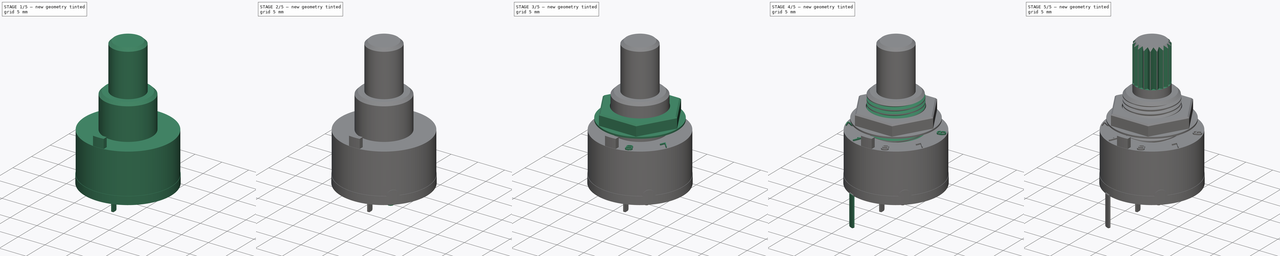
[diagram: build sequence overview — one tinted view per stage of 5, left to right]
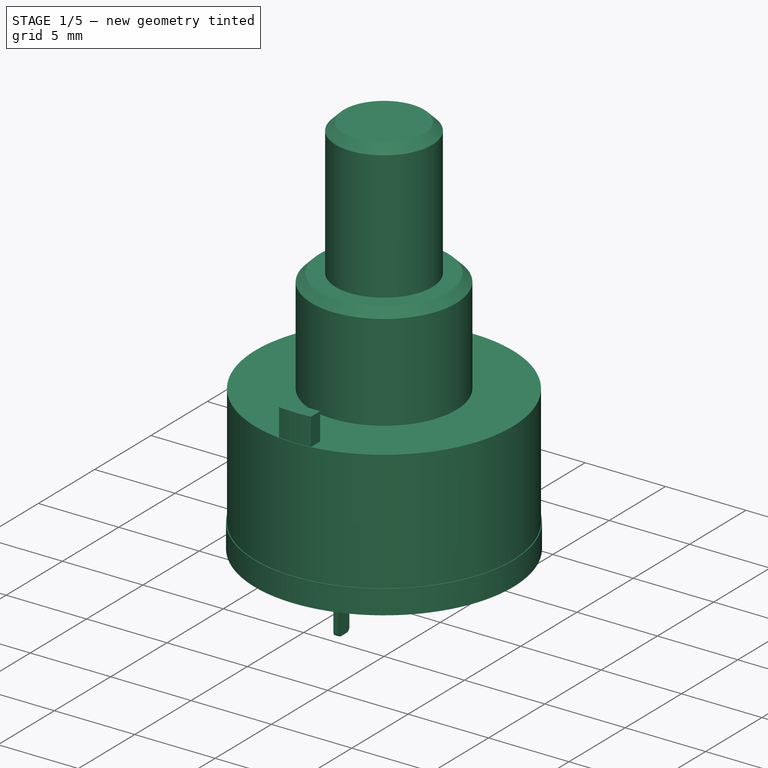
[diagram: stage 1 of 5 — iso view after this stage's code; geometry added in this stage tinted green]
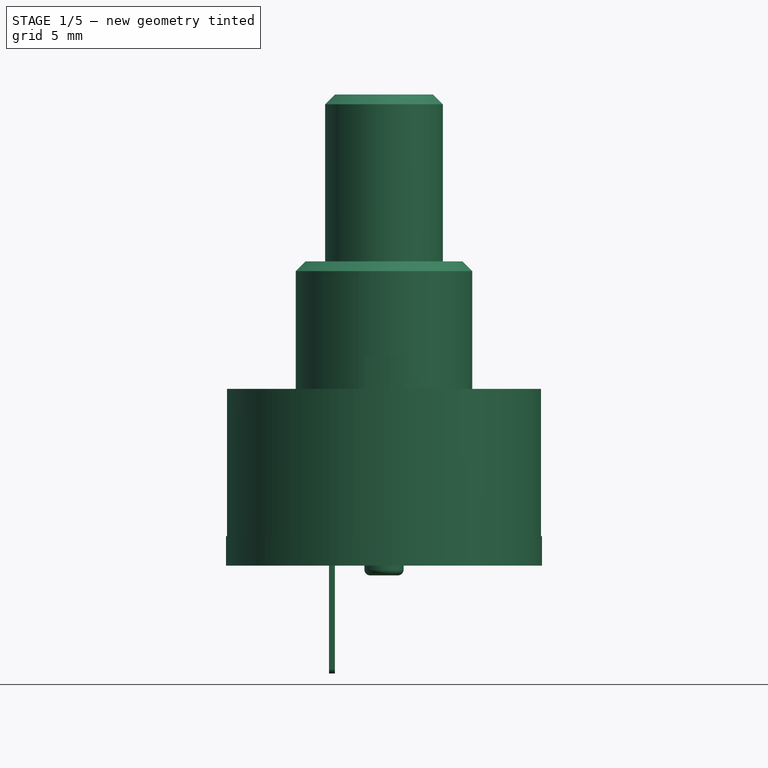
[diagram: stage 1 of 5 — front view after this stage's code; geometry added in this stage tinted green]
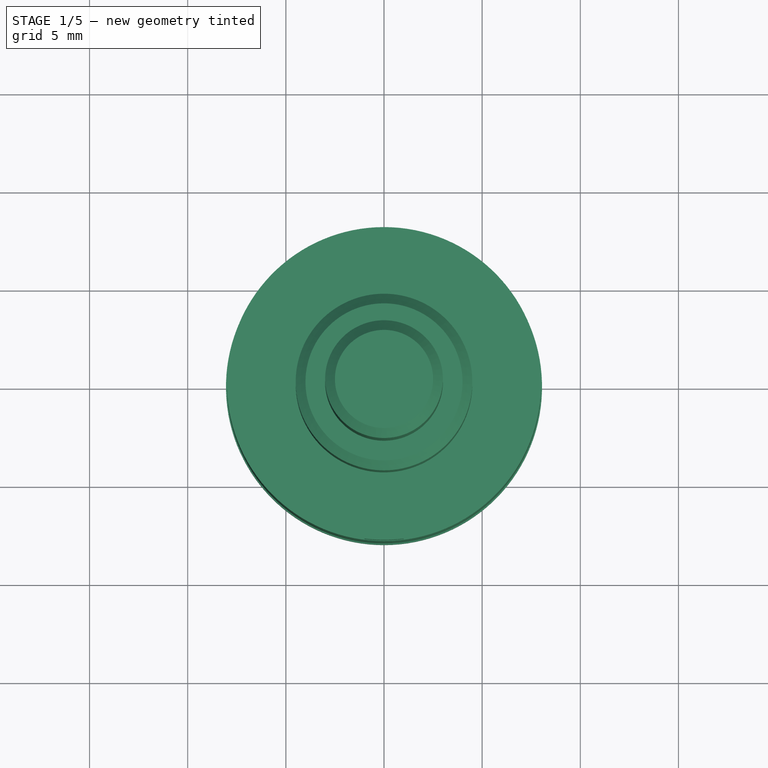
[diagram: stage 1 of 5 — top view after this stage's code; geometry added in this stage tinted green]
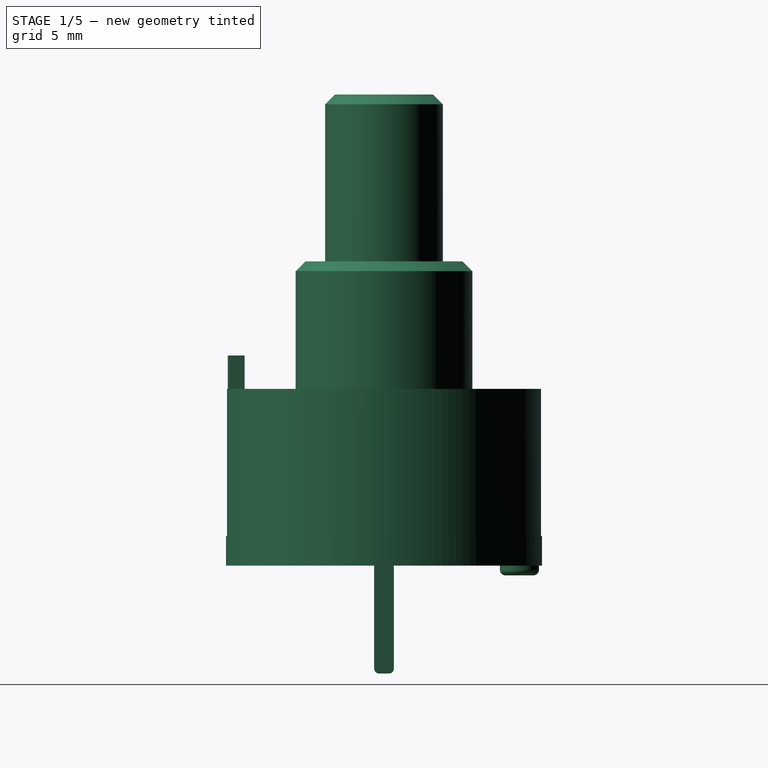
[diagram: stage 1 of 5 — right view after this stage's code; geometry added in this stage tinted green]
FCSTD DOCUMENT  (FreeCAD 0.19R16945 (Git))
Label: Daier RS16-2-4-15VP
License: All rights reserved
LicenseURL: http://en.wikipedia.org/wiki/All_rights_reserved
objects: PartDesign::Body×27, PartDesign::Pad×21, Sketcher::SketchObject×19, PartDesign::FeatureBase×11, Part::Part2DObjectPython×8, PartDesign::Fillet×6, PartDesign::Plane×4, PartDesign::PolarPattern×4, PartDesign::Pocket×3, PartDesign::Chamfer×2, PartDesign::AdditivePipe×1, Part::Helix×1, PartDesign::ShapeBinder×1, PartDesign::Mirrored×1, PartDesign::MultiTransform×1, PartDesign::SubtractivePipe×1
note: 137 computed .brp shape members not serialized (recipe doc carries the construction recipe); baked Part::Feature solids carry a one-line shape summary decoded from their .brp

FEATURE [Sketcher::SketchObject] Sketch
  AttachmentOffset = pos=(0,0,2.5) rot=(0,0,1;1.5708rad)
  MapMode = 5
  Placement = pos=(0,0,2.5) rot=(0,0,1;1.5708rad)
  Support = -> [XY_Plane]
  sketch-geometry (1):
    g0: Circle CenterX=0 CenterY=0 CenterZ=0 NormalX=0 NormalY=0 NormalZ=1 AngleXU=0 Radius=8
  constraints (2):
    c: Coincident(g0,g-1)
    c: Radius(g0) = 8
FEATURE [PartDesign::Pad] Pad  label="Body"
  Length = 7.5
  Length2 = 100
  Profile = -> Sketch
  Type = 0
FEATURE [Sketcher::SketchObject] Sketch001
  AttachmentOffset = pos=(0,0,0) rot=(0,0,1;1.5708rad)
  MapMode = 5
  Placement = pos=(0,0,10) rot=(0,0,1;1.5708rad)
  Support = -> [Pad]
  sketch-geometry (1):
    g0: Circle CenterX=0 CenterY=0 CenterZ=0 NormalX=0 NormalY=0 NormalZ=1 AngleXU=0 Radius=4.5
  constraints (2):
    c: Coincident(g0,g-1)
    c: Radius(g0) = 4.5
FEATURE [PartDesign::Pad] Pad001  label="Bushing"
  BaseFeature = -> Pad
  Length = 6.5
  Length2 = 100
  Profile = -> Sketch001
  Type = 0
FEATURE [Sketcher::SketchObject] Sketch002
  AttachmentOffset = pos=(0,0,0) rot=(0,0,1;1.5708rad)
  MapMode = 5
  Placement = pos=(0,0,16.5) rot=(0,0,1;1.5708rad)
  Support = -> [Pad001]
  sketch-geometry (1):
    g0: Circle CenterX=0 CenterY=0 CenterZ=0 NormalX=0 NormalY=0 NormalZ=1 AngleXU=0 Radius=3
  constraints (2):
    c: Coincident(g0,g-1)
    c: Radius(g0) = 3
FEATURE [PartDesign::Pad] Pad002  label="Shaft"
  BaseFeature = -> Pad001
  Length = 8.5
  Length2 = 100
  Profile = -> Sketch002
  Type = 0
FEATURE [Sketcher::SketchObject] Sketch003
  MapMode = 5
  Placement = pos=(0,0,10) rot=(0,0,1;0rad)
  sketch-geometry (7):
    g0: LineSegment [constr] StartX=-1 StartY=-7.9 StartZ=0 EndX=1 EndY=-7.9 EndZ=0
    g1: LineSegment StartX=1 StartY=-7.9 StartZ=0 EndX=1 EndY=-7.1 EndZ=0
    g2: LineSegment StartX=1 StartY=-7.1 StartZ=0 EndX=-1 EndY=-7.1 EndZ=0
    g3: LineSegment StartX=-1 StartY=-7.1 StartZ=0 EndX=-1 EndY=-7.9 EndZ=0
    g4: LineSegment [constr] StartX=-1 StartY=-7.9 StartZ=0 EndX=1 EndY=-7.1 EndZ=0
    g5: GeomPoint X=0 Y=-7.5 Z=0
    g6: ArcOfCircle CenterX=0 CenterY=0 CenterZ=0 NormalX=0 NormalY=0 NormalZ=1 AngleXU=0 Radius=7.96304 StartAngle=4.58648 EndAngle=4.8383
  constraints (17):
    c: Coincident(g1,g2)
    c: Coincident(g2,g3)
    c: Coincident(g3,g0)
    c: Horizontal(g0)
    c: Vertical(g1)
    c: Symmetric(g1,g2,g-2)
    c: DistanceX(g0,g0) = 2
    c: DistanceY(g3,g3) = 0.8
    c: Coincident(g4,g0)
    c: Coincident(g4,g1)
    c: PointOnObject(g5,g4)
    c: PointOnObject(g5,g-2)
    c: DistanceY(g5,g-1) = 7.5
    c: Coincident(g6,g-1)
    c: Coincident(g6,g3)
    c: Coincident(g6,g1)
    c: Coincident(g0,g1)
FEATURE [PartDesign::Pad] Pad003  label="Tab"
  BaseFeature = -> Pad002
  Length = 1.7
  Length2 = 100
  Profile = -> Sketch003
  Type = 0
FEATURE [Sketcher::SketchObject] Sketch008
  AttachmentOffset = pos=(0,0,1) rot=(0,0,1;0rad)
  MapMode = 5
  Placement = pos=(0,0,1) rot=(0,0,1;0rad)
  Support = -> [XY_Plane009]
  sketch-geometry (6):
    g0: LineSegment StartX=-2.8 StartY=0.5 StartZ=0 EndX=-2.5 EndY=0.5 EndZ=0
    g1: LineSegment StartX=-2.5 StartY=0.5 StartZ=0 EndX=-2.5 EndY=-0.5 EndZ=0
    g2: LineSegment StartX=-2.5 StartY=-0.5 StartZ=0 EndX=-2.8 EndY=-0.5 EndZ=0
    g3: LineSegment StartX=-2.8 StartY=-0.5 StartZ=0 EndX=-2.8 EndY=0.5 EndZ=0
    g4: LineSegment [constr] StartX=-2.8 StartY=-0.5 StartZ=0 EndX=-2.5 EndY=0.5 EndZ=0
    g5: GeomPoint X=-2.65 Y=0 Z=0
  constraints (15):
    c: Coincident(g0,g1)
    c: Coincident(g1,g2)
    c: Coincident(g2,g3)
    c: Coincident(g3,g0)
    c: Horizontal(g0)
    c: Horizontal(g2)
    c: Vertical(g3)
    c: Symmetric(g1,g0,g-1)
    c: DistanceY(g1,g1) = 1
    c: DistanceX(g0,g0) = 0.3
    c: Coincident(g4,g2)
    c: Coincident(g4,g0)
    c: PointOnObject(g5,g4)
    c: PointOnObject(g5,g-1)
    c: DistanceX(g5,g-1) = 2.65
FEATURE [PartDesign::Pad] Pad006
  Length = 5.5
  Length2 = 100
  Profile = -> Sketch008
  Reversed = true
  Type = 0
FEATURE [PartDesign::Body] Body018  label="String_8"
  Group = -> [ShapeString007,Pad014]
  Origin = -> Origin018
  Tip = -> Pad014
FEATURE [Sketcher::SketchObject] Sketch011
  AttachmentOffset = pos=(0,0,1) rot=(0,0,1;1.5708rad)
  MapMode = 5
  Placement = pos=(0,0,1) rot=(0,0,1;1.5708rad)
  Support = -> [XY_Plane019]
  sketch-geometry (1):
    g0: Circle CenterX=0 CenterY=0 CenterZ=0 NormalX=0 NormalY=0 NormalZ=1 AngleXU=0 Radius=8.05
  constraints (2):
    c: Coincident(g0,g-1)
    c: Radius(g0) = 8.05
FEATURE [PartDesign::Pad] Pad015
  Length = 1.5
  Length2 = 100
  Profile = -> Sketch011
  Type = 0
FEATURE [Sketcher::SketchObject] Sketch016
  AttachmentOffset = pos=(0,0,1) rot=(0,0,1;0rad)
  MapMode = 5
  Placement = pos=(0,0,1) rot=(0,0,1;0rad)
  Support = -> [XY_Plane021]
  sketch-geometry (1):
    g0: Circle CenterX=0 CenterY=6.9 CenterZ=0 NormalX=0 NormalY=0 NormalZ=1 AngleXU=0 Radius=1
  constraints (3):
    c: PointOnObject(g0,g-2)
    c: Radius(g0) = 1
    c: DistanceY(g-1,g0) = 6.9
FEATURE [PartDesign::Pad] Pad018
  Length = 0.5
  Length2 = 100
  Profile = -> Sketch016
  Reversed = true
  Type = 0
FEATURE [PartDesign::Body] Body019  label="BottomBody"
  Group = -> [Sketch011,Pad015,Sketch012,Pad016,Sketch013,Pad017,PolarPattern001,Sketch014,Pocket001,PolarPattern002,Sketch015,Pocket002,MultiTransform,PolarPattern003,Mirrored,Sketch020,Pad021,Fillet005,Fillet006,Fillet007]
  Origin = -> Origin019
  Tip = -> Fillet007
FEATURE [PartDesign::Fillet] Fillet008
  Base = -> Pad018 [Edge3]
  BaseFeature = -> Pad018
  Radius = 0.3
FEATURE [PartDesign::Body] Body024  label="BottomPad4"
  BaseFeature = -> Body021
  Group = -> [Clone010]
  Origin = -> Origin024
  Placement = pos=(0,0,0) rot=(0,0,-1;1.5708rad)
  Tip = -> Clone010
FEATURE [PartDesign::Fillet] Fillet009
  Base = -> Pad006 [Edge4,Edge10]
  BaseFeature = -> Pad006
  Radius = 0.25
FEATURE [PartDesign::Body] Body010  label="Pin_Pole_B"
  BaseFeature = -> Body009
  Group = -> [Clone007]
  Origin = -> Origin010
  Placement = pos=(0,0,0) rot=(0,0,1;3.14159rad)
  Tip = -> Clone007
FEATURE [PartDesign::Chamfer] Chamfer001
  Base = -> Pad003 [Edge10,Edge21]
  BaseFeature = -> Pad003
  Size = 0.5
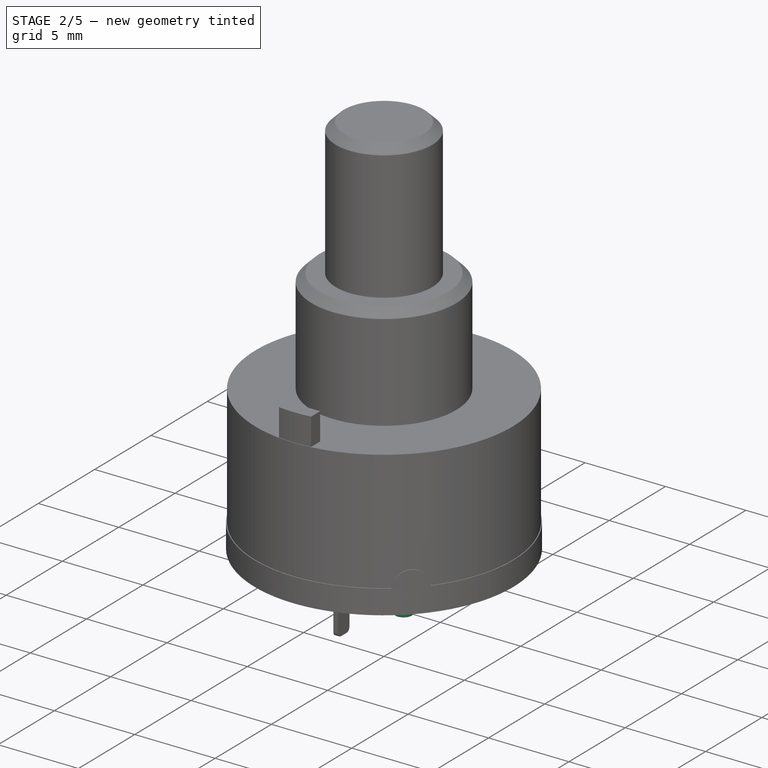
[diagram: stage 2 of 5 — iso view after this stage's code; geometry added in this stage tinted green]
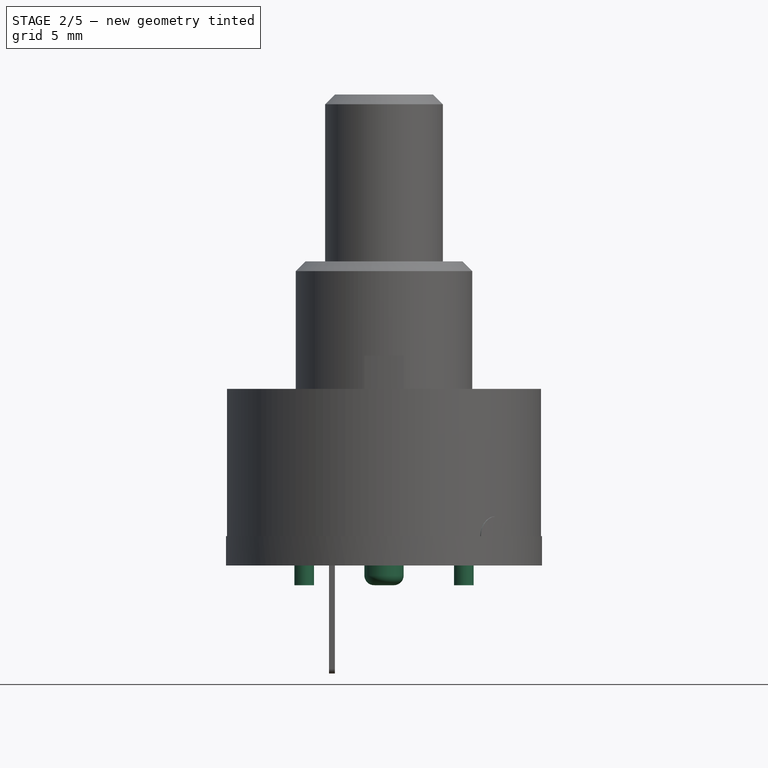
[diagram: stage 2 of 5 — front view after this stage's code; geometry added in this stage tinted green]
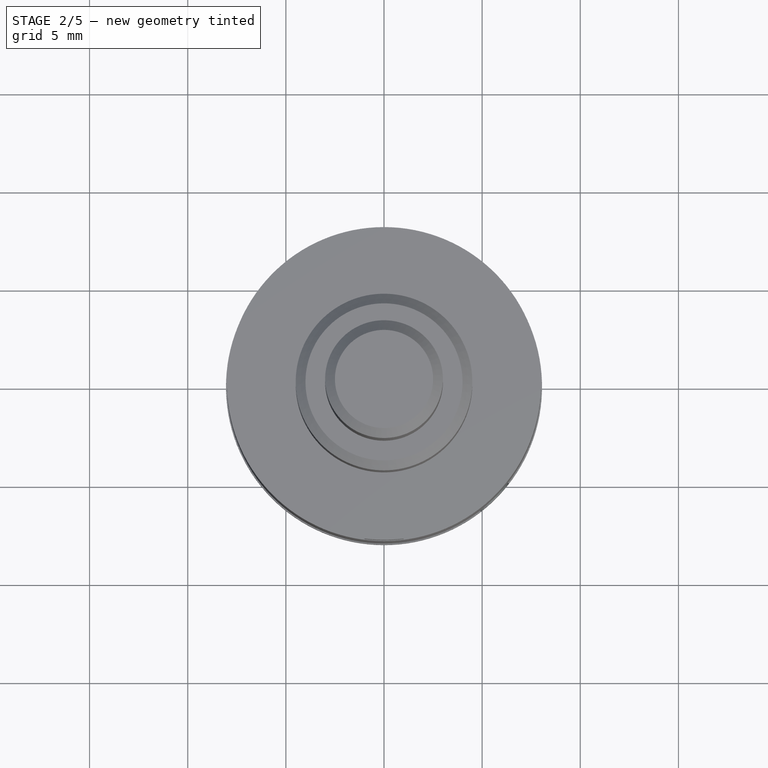
[diagram: stage 2 of 5 — top view after this stage's code; geometry added in this stage tinted green]
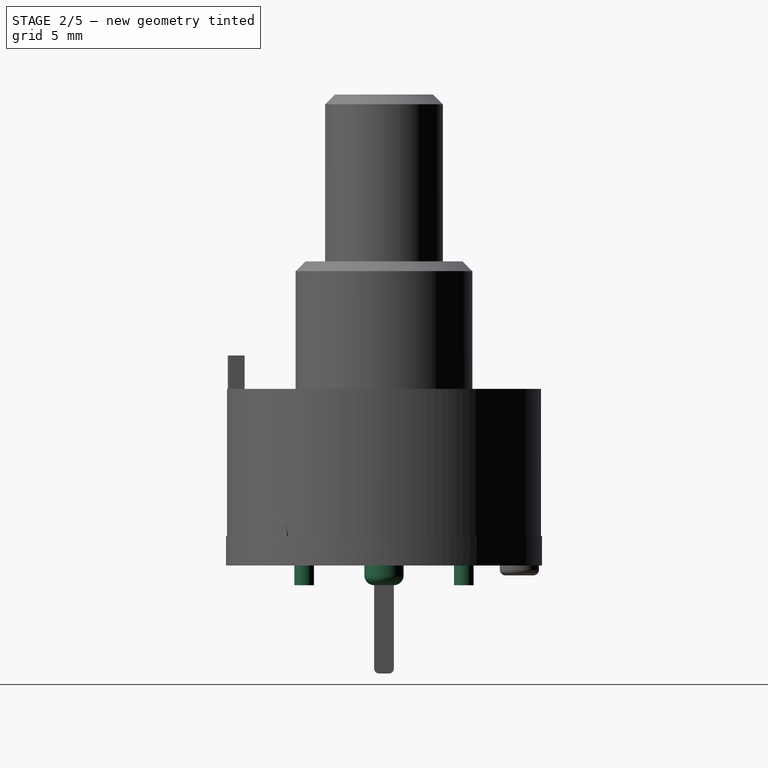
[diagram: stage 2 of 5 — right view after this stage's code; geometry added in this stage tinted green]
FEATURE [Sketcher::SketchObject] Sketch012
  MapMode = 5
  Placement = pos=(0,0,1) rot=(1,0,0;3.14159rad)
  Support = -> [Pad015]
  sketch-geometry (1):
    g0: Circle CenterX=0 CenterY=0 CenterZ=0 NormalX=0 NormalY=0 NormalZ=1 AngleXU=0 Radius=1
  constraints (2):
    c: Coincident(g0,g-1)
    c: Radius(g0) = 1
FEATURE [PartDesign::Pad] Pad016
  BaseFeature = -> Pad015
  Length = 1
  Length2 = 100
  Profile = -> Sketch012
  Type = 0
FEATURE [PartDesign::Plane] DatumPlane  label="z=0"
  Length = 24
  MapMode = 5
  ResizeMode = 0
  Support = -> [XY_Plane020]
  Width = 24
FEATURE [PartDesign::Plane] DatumPlane001  label="z=-4.5"
  AttachmentOffset = pos=(0,0,-4.5) rot=(0,0,1;0rad)
  Length = 24
  MapMode = 5
  Placement = pos=(0,0,-4.5) rot=(0,0,1;0rad)
  ResizeMode = 0
  Support = -> [XY_Plane020]
  Width = 24
FEATURE [Sketcher::SketchObject] Sketch013
  AttachmentOffset = pos=(0,0,0) rot=(0,0,1;0.785398rad)
  MapMode = 5
  Placement = pos=(0,0,1) rot=(0.92388,-0.382683,0;3.14159rad)
  Support = -> [Pad016]
  sketch-geometry (1):
    g0: Circle CenterX=0 CenterY=5.74941 CenterZ=0 NormalX=0 NormalY=0 NormalZ=1 AngleXU=0 Radius=0.5
  constraints (2):
    c: PointOnObject(g0,g-2)
    c: Radius(g0) = 0.5
FEATURE [PartDesign::Pad] Pad017
  BaseFeature = -> Pad016
  Length = 1
  Length2 = 100
  Profile = -> Sketch013
  Type = 0
FEATURE [PartDesign::PolarPattern] PolarPattern001
  Angle = 360
  Axis = -> Sketch013 [N_Axis]
  BaseFeature = -> Pad017
  Occurrences = 4
  Originals = -> [Pad017]
FEATURE [Sketcher::SketchObject] Sketch014
  MapMode = 5
  Placement = pos=(0,0,1) rot=(1,0,0;3.14159rad)
  Support = -> [PolarPattern001]
  sketch-geometry (1):
    g0: Circle CenterX=2 CenterY=2 CenterZ=0 NormalX=0 NormalY=0 NormalZ=1 AngleXU=0 Radius=0.25
  constraints (3):
    c: Radius(g0) = 0.25
    c: DistanceY(g-1,g0) = 2
    c: DistanceX(g-1,g0) = 2
FEATURE [PartDesign::Pocket] Pocket001
  BaseFeature = -> PolarPattern001
  Length = 0.1
  Length2 = 100
  Profile = -> Sketch014
  Type = 0
FEATURE [PartDesign::PolarPattern] PolarPattern002
  Angle = 360
  Axis = -> Sketch014 [N_Axis]
  BaseFeature = -> Pocket001
  Occurrences = 4
  Originals = -> [Pocket001]
FEATURE [Sketcher::SketchObject] Sketch015
  MapMode = 5
  Placement = pos=(0,0,1) rot=(1,0,0;3.14159rad)
  Support = -> [PolarPattern002]
  sketch-geometry (1):
    g0: Circle CenterX=2 CenterY=-4 CenterZ=0 NormalX=0 NormalY=0 NormalZ=1 AngleXU=0 Radius=0.25
  constraints (3):
    c: Radius(g0) = 0.25
    c: DistanceY(g0,g-1) = 4
    c: DistanceX(g-1,g0) = 2
FEATURE [PartDesign::Pocket] Pocket002
  BaseFeature = -> PolarPattern002
  Length = 0.1
  Length2 = 100
  Profile = -> Sketch015
  Type = 0
FEATURE [PartDesign::PolarPattern] PolarPattern003
  Angle = 360
  Axis = -> Sketch015 [N_Axis]
  Occurrences = 4
FEATURE [PartDesign::Mirrored] Mirrored
  MirrorPlane = -> Sketch015 [V_Axis]
FEATURE [PartDesign::MultiTransform] MultiTransform
  BaseFeature = -> Pocket002
  Originals = -> [Pocket002]
  Transformations = -> [PolarPattern003,Mirrored]
FEATURE [PartDesign::Body] Body026  label="Nut"
  Group = -> [Sketch019,Pad020,Chamfer]
  Origin = -> Origin026
  Tip = -> Chamfer
FEATURE [Sketcher::SketchObject] Sketch020
  AttachmentOffset = pos=(0,0,2.5) rot=(0,0,1;0.785398rad)
  MapMode = 5
  Placement = pos=(0,0,2.5) rot=(0,0,1;0.785398rad)
  Support = -> [XY_Plane019]
  sketch-geometry (5):
    g0: ArcOfCircle CenterX=0 CenterY=0 CenterZ=0 NormalX=0 NormalY=0 NormalZ=1 AngleXU=0 Radius=8.05 StartAngle=4.58784 EndAngle=4.83693
    g1: LineSegment StartX=-1 StartY=-7.98765 StartZ=0 EndX=-1 EndY=-7.73794 EndZ=0
    g2: LineSegment StartX=-1 StartY=-7.73794 StartZ=0 EndX=1 EndY=-7.73794 EndZ=0
    g3: LineSegment StartX=1 StartY=-7.73794 StartZ=0 EndX=1 EndY=-7.98765 EndZ=0
    g4: GeomPoint X=0 Y=-8.05 Z=0
  constraints (13):
    c: Coincident(g0,g-1)
    c: Symmetric(g0,g0,g-2)
    c: DistanceX(g0,g0) = 2
    c: Coincident(g1,g0)
    c: Vertical(g1)
    c: Coincident(g2,g1)
    c: Horizontal(g2)
    c: Coincident(g3,g0)
    c: Vertical(g3)
    c: Coincident(g3,g2)
    c: PointOnObject(g4,g0)
    c: PointOnObject(g4,g-2)
    c: DistanceY(g4,g0) = 8.05
FEATURE [PartDesign::Pad] Pad021
  BaseFeature = -> MultiTransform
  Length = 1
  Length2 = 100
  Profile = -> Sketch020
  Type = 0
FEATURE [PartDesign::Fillet] Fillet005
  Base = -> Pad021 [Edge64,Edge67]
  BaseFeature = -> Pad021
  Radius = 0.99
FEATURE [PartDesign::Fillet] Fillet006
  Base = -> Fillet005 [Edge59]
  BaseFeature = -> Fillet005
  Radius = 0.5
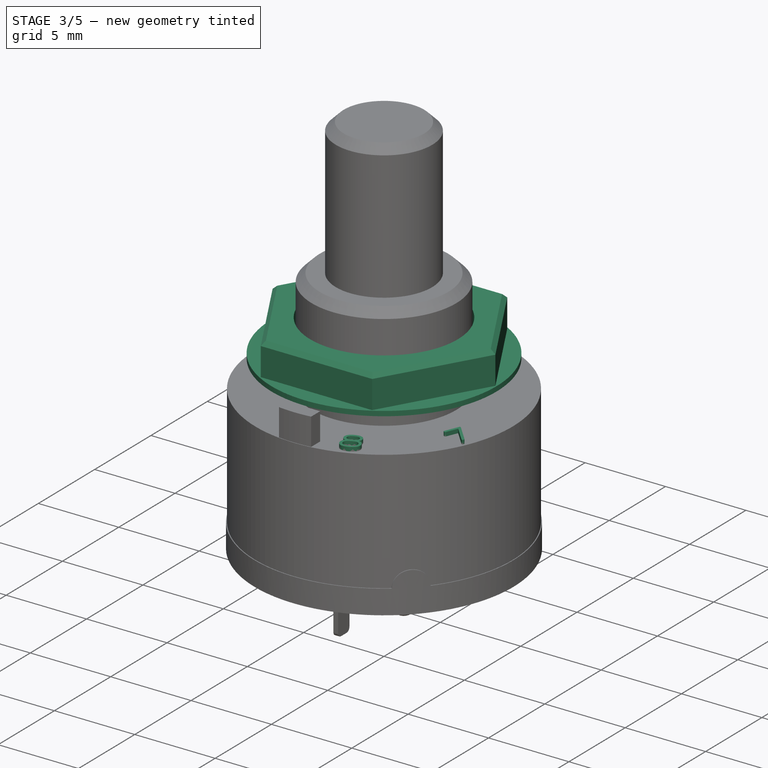
[diagram: stage 3 of 5 — iso view after this stage's code; geometry added in this stage tinted green]
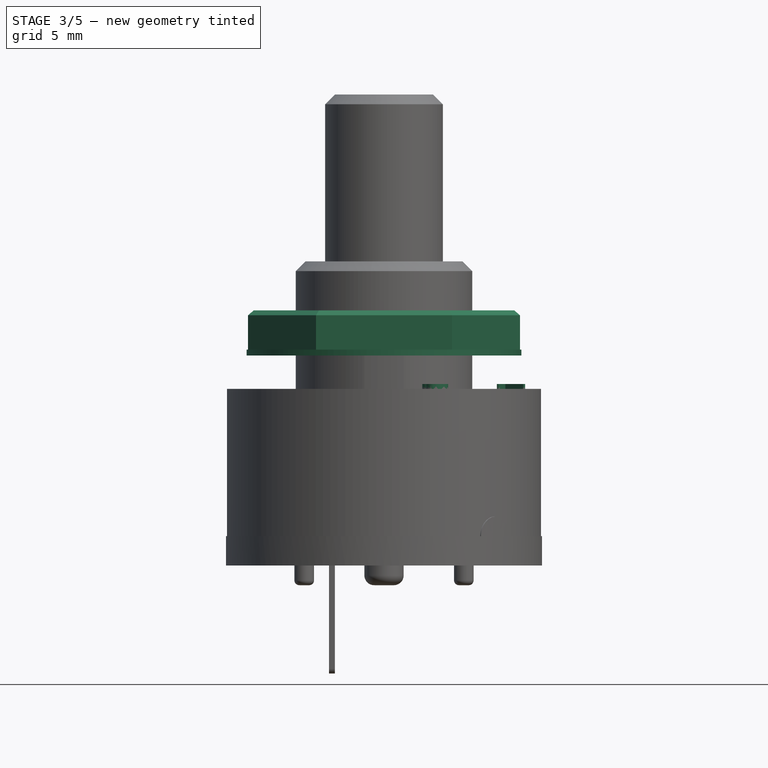
[diagram: stage 3 of 5 — front view after this stage's code; geometry added in this stage tinted green]
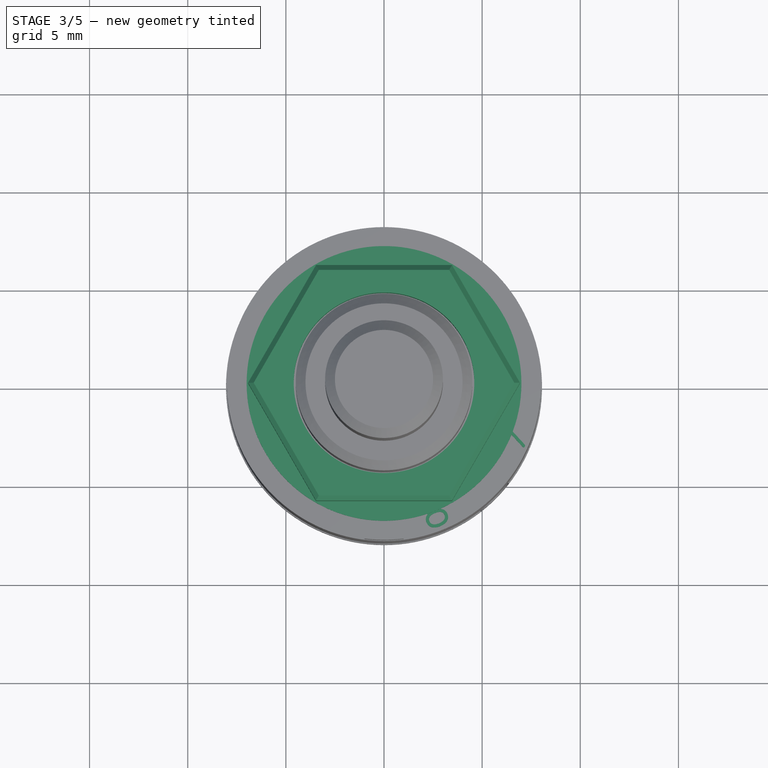
[diagram: stage 3 of 5 — top view after this stage's code; geometry added in this stage tinted green]
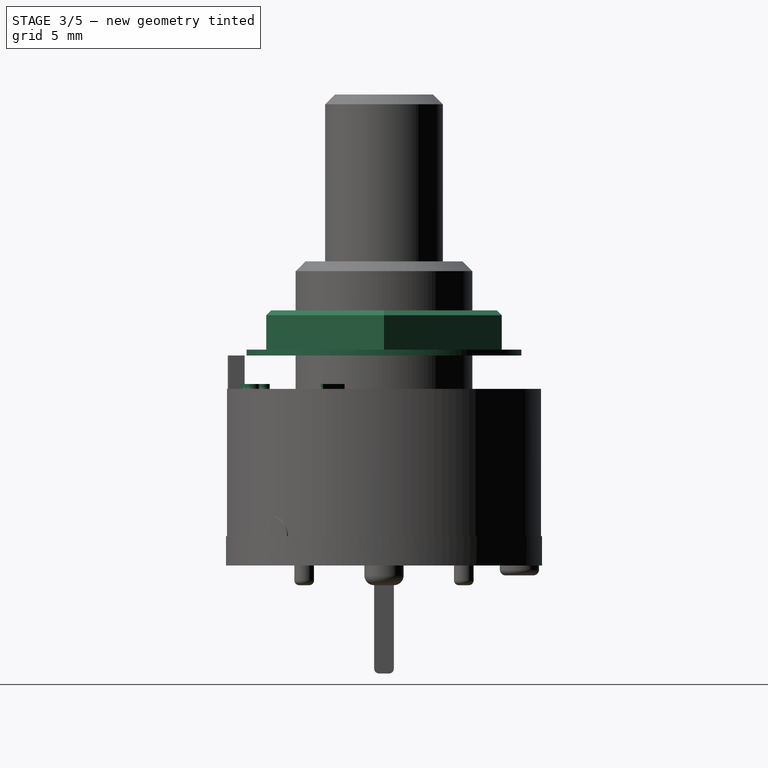
[diagram: stage 3 of 5 — right view after this stage's code; geometry added in this stage tinted green]
FEATURE [PartDesign::Body] Body016  label="String_6"
  Group = -> [ShapeString005,Pad012]
  Origin = -> Origin016
  Tip = -> Pad012
FEATURE [Part::Part2DObjectPython] ShapeString006  # Draft 2D object (typed FeaturePython)
  AttachmentOffset = pos=(7,-3.6,10) rot=(0,0,1;-5.10509rad)
  FontFile = <userpath>/Desktop/GitHub/freecad-projects/Fonts/Walkway rounded.ttf
  MapMode = 5
  Placement = pos=(7,-3.6,10) rot=(0,0,1;1.1781rad)
  Size = 0.75
  String = 7
  Support = -> [XY_Plane017]
  Tracking = 0
FEATURE [PartDesign::Pad] Pad013
  Length = 0.25
  Length2 = 100
  Profile = -> ShapeString006
  Type = 0
FEATURE [PartDesign::Body] Body017  label="String_7"
  Group = -> [ShapeString006,Pad013]
  Origin = -> Origin017
  Tip = -> Pad013
FEATURE [Part::Part2DObjectPython] ShapeString007  # Draft 2D object (typed FeaturePython)
  AttachmentOffset = pos=(2.25,-7.5,10) rot=(0,0,1;0.392699rad)
  FontFile = <userpath>/Desktop/GitHub/freecad-projects/Fonts/Walkway rounded.ttf
  MapMode = 5
  Placement = pos=(2.25,-7.5,10) rot=(0,0,1;0.392699rad)
  Size = 0.75
  String = 8
  Support = -> [XY_Plane018]
  Tracking = 0
FEATURE [PartDesign::Pad] Pad014
  Length = 0.25
  Length2 = 100
  Profile = -> ShapeString007
  Type = 0
FEATURE [Sketcher::SketchObject] Sketch017
  MapMode = 5
  Support = -> [XY_Plane021]
FEATURE [PartDesign::Plane] DatumPlane002  label="z=10"
  AttachmentOffset = pos=(0,0,10) rot=(0,0,1;0rad)
  Length = 24
  MapMode = 5
  Placement = pos=(0,0,10) rot=(0,0,1;0rad)
  ResizeMode = 0
  Support = -> [XY_Plane020]
  Width = 24
FEATURE [PartDesign::Plane] DatumPlane003  label="z=25"
  AttachmentOffset = pos=(0,0,25) rot=(0,0,1;0rad)
  Length = 24
  MapMode = 5
  Placement = pos=(0,0,25) rot=(0,0,1;0rad)
  ResizeMode = 0
  Support = -> [XY_Plane020]
  Width = 24
FEATURE [PartDesign::Body] Body020  label="RefPlanes"
  Group = -> [DatumPlane,DatumPlane001,DatumPlane002,DatumPlane003]
  Origin = -> Origin020
FEATURE [Sketcher::SketchObject] Sketch018
  AttachmentOffset = pos=(0,0,11.7) rot=(0,0,1;0rad)
  MapMode = 5
  Placement = pos=(0,0,11.7) rot=(0,0,1;0rad)
  Support = -> [XY_Plane025]
  sketch-geometry (2):
    g0: Circle CenterX=0 CenterY=0 CenterZ=0 NormalX=0 NormalY=0 NormalZ=1 AngleXU=0 Radius=4.6
    g1: Circle CenterX=0 CenterY=0 CenterZ=0 NormalX=0 NormalY=0 NormalZ=1 AngleXU=0 Radius=7
  constraints (4):
    c: Coincident(g0,g-1)
    c: Coincident(g1,g0)
    c: Radius(g0) = 4.6
    c: Radius(g1) = 7
FEATURE [PartDesign::Pad] Pad019
  Length = 0.3
  Length2 = 100
  Profile = -> Sketch018
  Type = 0
FEATURE [PartDesign::Body] Body025  label="Washer"
  Group = -> [Sketch018,Pad019]
  Origin = -> Origin025
  Tip = -> Pad019
FEATURE [Sketcher::SketchObject] Sketch019
  AttachmentOffset = pos=(0,0,12) rot=(0,0,1;0rad)
  MapMode = 5
  Placement = pos=(0,0,12) rot=(0,0,1;0rad)
  Support = -> [XY_Plane026]
  sketch-geometry (8):
    g0: Circle CenterX=0 CenterY=0 CenterZ=0 NormalX=0 NormalY=0 NormalZ=1 AngleXU=0 Radius=4.6
    g1: LineSegment StartX=-3.4641 StartY=-6 StartZ=0 EndX=3.4641 EndY=-6 EndZ=0
    g2: LineSegment StartX=3.4641 StartY=-6 StartZ=0 EndX=6.9282 EndY=0 EndZ=0
    g3: LineSegment StartX=6.9282 StartY=0 StartZ=0 EndX=3.4641 EndY=6 EndZ=0
    g4: LineSegment StartX=3.4641 StartY=6 StartZ=0 EndX=-3.4641 EndY=6 EndZ=0
    g5: LineSegment StartX=-3.4641 StartY=6 StartZ=0 EndX=-6.9282 EndY=0 EndZ=0
    g6: LineSegment StartX=-6.9282 StartY=0 StartZ=0 EndX=-3.4641 EndY=-6 EndZ=0
    g7: Circle [constr] CenterX=0 CenterY=0 CenterZ=0 NormalX=0 NormalY=0 NormalZ=1 AngleXU=0 Radius=6.9282
  constraints (18):
    c: Radius(g0) = 4.6
    c: Coincident(g1,g2)
    c: Coincident(g2,g3)
    c: Coincident(g3,g4)
    c: Coincident(g4,g5)
    c: Coincident(g5,g6)
    c: Coincident(g6,g1)
    c: Equal(g1, g2-g6) x5
    c: PointOnObject(g1,g7)
    c: PointOnObject(g2,g7)
    c: PointOnObject(g3,g7)
    c: PointOnObject(g4,g7)
    c: PointOnObject(g5,g7)
    c: PointOnObject(g6,g7)
    c: Coincident(g7,g-1)
    c: Coincident(g0,g-1)
    c: Horizontal(g4)
    c: DistanceY(g1,g4) = 12
FEATURE [PartDesign::Pad] Pad020
  Length = 2
  Length2 = 100
  Profile = -> Sketch019
  Type = 0
FEATURE [PartDesign::Chamfer] Chamfer
  Base = -> Pad020 [Edge4,Edge7,Edge10,Edge13,Edge18,Edge16]
  BaseFeature = -> Pad020
  Size = 0.25
FEATURE [PartDesign::Fillet] Fillet007
  Base = -> Fillet006 [Edge50,Edge36,Edge58,Edge54]
  BaseFeature = -> Fillet006
  Radius = 0.25
FEATURE [PartDesign::Body] Body021  label="BottomPad"
  Group = -> [Sketch016,Pad018,Sketch017,Fillet008]
  Origin = -> Origin021
  Tip = -> Fillet008
FEATURE [PartDesign::FeatureBase] Clone008
  BaseFeature = -> Body021
FEATURE [PartDesign::Body] Body022  label="BottomPad2"
  BaseFeature = -> Body021
  Group = -> [Clone008]
  Origin = -> Origin022
  Placement = pos=(0,0,0) rot=(0,0,1;1.5708rad)
  Tip = -> Clone008
FEATURE [PartDesign::FeatureBase] Clone009
  BaseFeature = -> Body021
FEATURE [PartDesign::Body] Body023  label="BottomPad3"
  BaseFeature = -> Body021
  Group = -> [Clone009]
  Origin = -> Origin023
  Placement = pos=(0,0,0) rot=(0,0,1;3.14159rad)
  Tip = -> Clone009
FEATURE [PartDesign::FeatureBase] Clone010
  BaseFeature = -> Body021
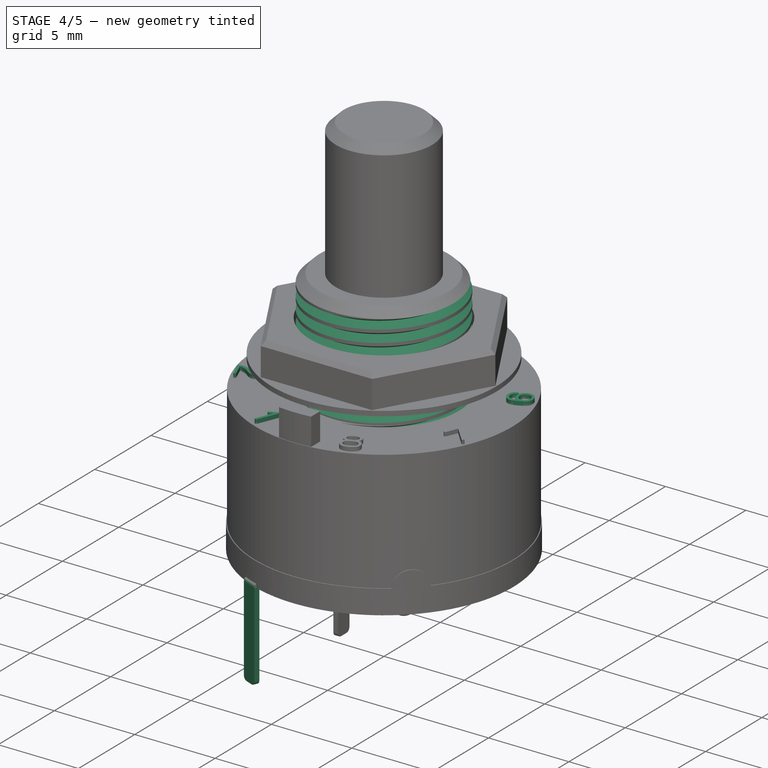
[diagram: stage 4 of 5 — iso view after this stage's code; geometry added in this stage tinted green]
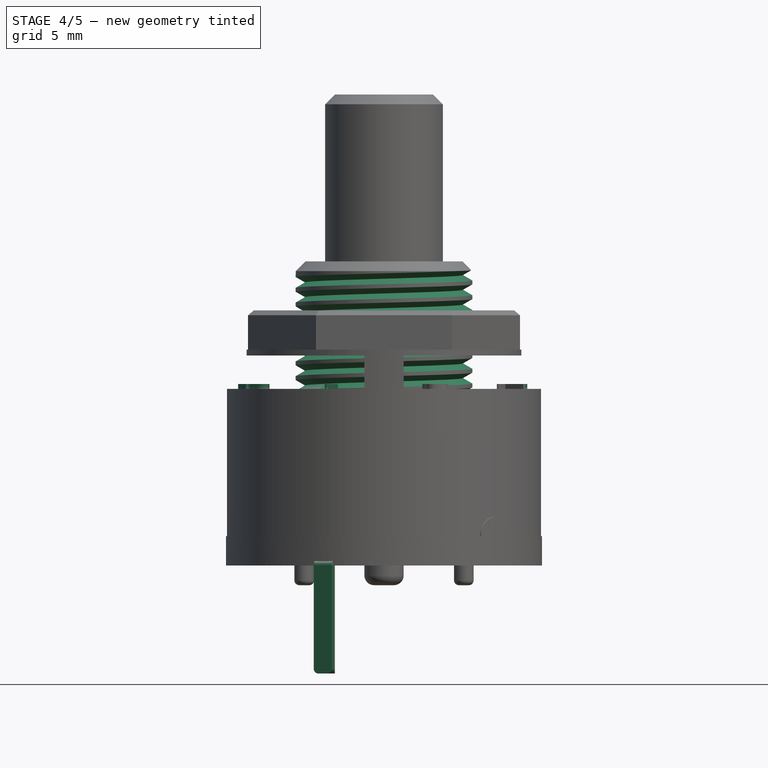
[diagram: stage 4 of 5 — front view after this stage's code; geometry added in this stage tinted green]
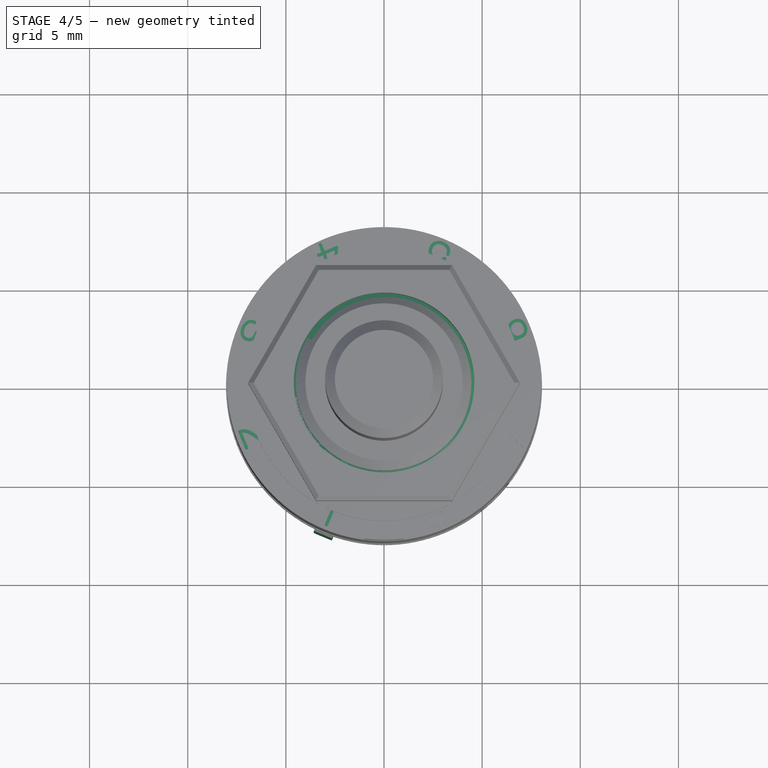
[diagram: stage 4 of 5 — top view after this stage's code; geometry added in this stage tinted green]
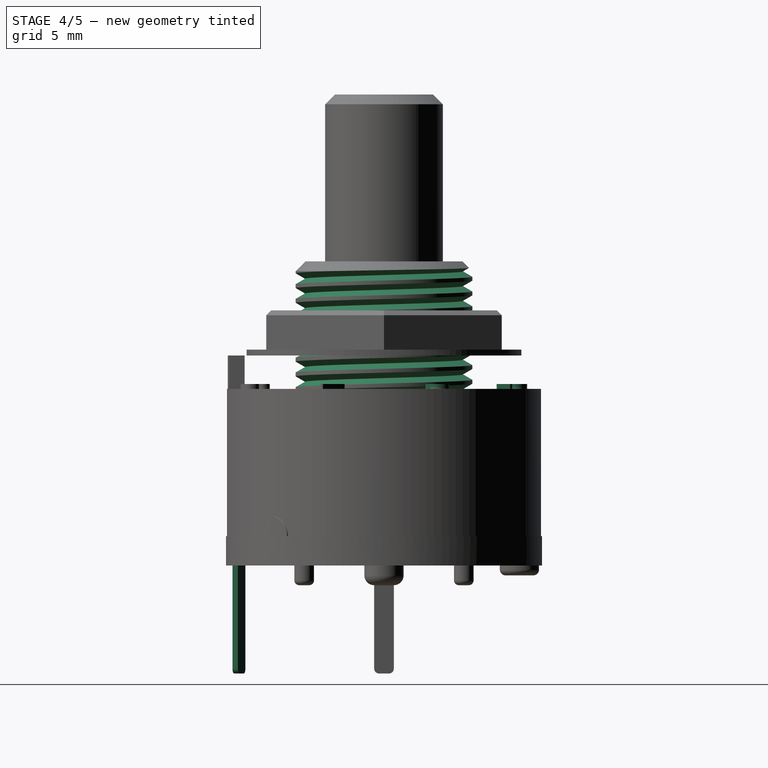
[diagram: stage 4 of 5 — right view after this stage's code; geometry added in this stage tinted green]
FEATURE [Sketcher::SketchObject] Sketch005
  AttachmentOffset = pos=(0,0,1) rot=(0,0,1;-0.392699rad)
  MapMode = 5
  Placement = pos=(0,0,1) rot=(0,0,1;5.89049rad)
  Support = -> [XY_Plane001]
  sketch-geometry (6):
    g0: LineSegment StartX=-0.5 StartY=-8.15 StartZ=0 EndX=0.5 EndY=-8.15 EndZ=0
    g1: LineSegment StartX=0.5 StartY=-8.15 StartZ=0 EndX=0.5 EndY=-7.85 EndZ=0
    g2: LineSegment StartX=0.5 StartY=-7.85 StartZ=0 EndX=-0.5 EndY=-7.85 EndZ=0
    g3: LineSegment StartX=-0.5 StartY=-7.85 StartZ=0 EndX=-0.5 EndY=-8.15 EndZ=0
    g4: LineSegment [constr] StartX=-0.5 StartY=-8.15 StartZ=0 EndX=0.5 EndY=-7.85 EndZ=0
    g5: GeomPoint X=0 Y=-8 Z=0
  constraints (15):
    c: Coincident(g0,g1)
    c: Coincident(g1,g2)
    c: Coincident(g2,g3)
    c: Coincident(g3,g0)
    c: Horizontal(g0)
    c: Vertical(g1)
    c: Vertical(g3)
    c: Symmetric(g2,g1,g-2)
    c: DistanceX(g0,g0) = 1
    c: DistanceY(g1,g1) = 0.3
    c: Coincident(g4,g0)
    c: Coincident(g4,g1)
    c: PointOnObject(g5,g4)
    c: PointOnObject(g5,g-2)
    c: DistanceY(g5,g-1) = 8
FEATURE [PartDesign::Pad] Pad004
  Length = 5.5
  Length2 = 100
  Profile = -> Sketch005
  Reversed = true
  Type = 0
FEATURE [Sketcher::SketchObject] Sketch006
  AttachmentOffset = pos=(0,1,0) rot=(0,1,0;-0.392699rad)
  MapMode = 5
  Placement = pos=(-2e-16,2e-16,1) rot=(-0.726831,-0.485653,-0.485653;4.39861rad)
  Support = -> [YZ_Plane001]
  sketch-geometry (1):
    g0: ArcOfCircle CenterX=-7.85 CenterY=0 CenterZ=0 NormalX=0 NormalY=0 NormalZ=1 AngleXU=0 Radius=0.301214 StartAngle=1.66061 EndAngle=3.14159
  constraints (4):
    c: PointOnObject(g0,g-1)
    c: PointOnObject(g0,g-1)
    c: DistanceY(g0,g0) = 0.3
    c: DistanceX(g0,g-1) = 7.85
FEATURE [PartDesign::AdditivePipe] AdditivePipe
  AuxilleryCurvelinear = true
  AuxillerySpineTangent = false
  BaseFeature = -> Pad004
  Binormal = (0,0,0)
  Mode = 0
  Profile = -> Sketch005
  Spine = -> Sketch006
  SpineTangent = false
  Transformation = 0
  Transition = 0
FEATURE [Part::Helix] Helix
  Angle = 0
  AttacherType = Attacher::AttachEngine3D
  Height = 6.5
  LocalCoord = 0
  Pitch = 0.75
  Placement = pos=(0,0,10) rot=(0,0,-1;1.5708rad)
  Radius = 4.5
  Style = 1
FEATURE [PartDesign::ShapeBinder] ShapeBinder  label="HelixShapeBinder"
  Placement = pos=(0,0,10) rot=(0,0,-1;1.5708rad)
  Support = -> [Helix]
  TraceSupport = false
FEATURE [Sketcher::SketchObject] Sketch009
  MapMode = 5
  Placement = pos=(0,0,0) rot=(1,0,0;1.5708rad)
  Support = -> [XZ_Plane]
  sketch-geometry (4):
    g0: LineSegment StartX=4.67014 StartY=10.176 StartZ=0 EndX=4.02062 EndY=9.80104 EndZ=0
    g1: LineSegment StartX=4.02062 StartY=9.80104 StartZ=0 EndX=4.67014 EndY=9.42604 EndZ=0
    g2: LineSegment StartX=4.67014 StartY=9.42604 StartZ=0 EndX=4.67014 EndY=10.176 EndZ=0
    g3: Circle [constr] CenterX=4.45363 CenterY=9.80104 CenterZ=0 NormalX=0 NormalY=0 NormalZ=1 AngleXU=0 Radius=0.433013
  constraints (10):
    c: Coincident(g0,g1)
    c: Coincident(g1,g2)
    c: Coincident(g2,g0)
    c: Equal(g0,g1)
    c: Equal(g0,g2)
    c: PointOnObject(g0,g3)
    c: PointOnObject(g1,g3)
    c: PointOnObject(g2,g3)
    c: Vertical(g2)
    c: DistanceY(g2,g2) = 0.75
FEATURE [Sketcher::SketchObject] Sketch010
  AttachmentOffset = pos=(0,0,25) rot=(0,0,1;0rad)
  MapMode = 5
  Placement = pos=(0,0,25) rot=(0,0,1;0rad)
  Support = -> [XY_Plane]
  sketch-geometry (4):
    g0: LineSegment StartX=0 StartY=2.5 StartZ=0 EndX=1 EndY=3.5 EndZ=0
    g1: LineSegment StartX=1 StartY=3.5 StartZ=0 EndX=-1 EndY=3.5 EndZ=0
    g2: LineSegment StartX=-1 StartY=3.5 StartZ=0 EndX=0 EndY=2.5 EndZ=0
    g3: Circle [constr] CenterX=0 CenterY=3.5 CenterZ=0 NormalX=0 NormalY=0 NormalZ=1 AngleXU=0 Radius=1
  constraints (12):
    c: Coincident(g0,g1)
    c: Coincident(g1,g2)
    c: Coincident(g2,g0)
    c: Equal(g0,g2)
    c: PointOnObject(g0,g3)
    c: PointOnObject(g1,g3)
    c: PointOnObject(g2,g3)
    c: PointOnObject(g2,g-2)
    c: PointOnObject(g3,g-2)
    c: Angle(g0,g2) = 1.5708
    c: DistanceY(g0,g3) = 1
    c: DistanceY(g-1,g0) = 2.5
FEATURE [PartDesign::Fillet] Fillet
  Base = -> AdditivePipe [Edge10,Edge7]
  BaseFeature = -> AdditivePipe
  Radius = 0.25
FEATURE [PartDesign::Body] Body008  label="Pin_Throw_B4"
  BaseFeature = -> Body007
  Group = -> [Clone006]
  Origin = -> Origin008
  Placement = pos=(0,0,0) rot=(0,0,1;0.785398rad)
  Tip = -> Clone006
FEATURE [Part::Part2DObjectPython] ShapeString  # Draft 2D object (typed FeaturePython)
  AttachmentOffset = pos=(-3.5,-7,10) rot=(0,0,1;-0.392699rad)
  FontFile = <userpath>/Desktop/GitHub/freecad-projects/Fonts/Walkway rounded.ttf
  MapMode = 5
  Placement = pos=(-3.5,-7,10) rot=(0,0,1;5.89049rad)
  Size = 0.75
  String = 1
  Support = -> [XY_Plane011]
  Tracking = 0
FEATURE [PartDesign::Pad] Pad007
  Length = 0.25
  Length2 = 100
  Profile = -> ShapeString
  Type = 0
FEATURE [PartDesign::Body] Body011  label="String_1"
  Group = -> [ShapeString,Pad007]
  Origin = -> Origin011
  Tip = -> Pad007
FEATURE [Part::Part2DObjectPython] ShapeString001  # Draft 2D object (typed FeaturePython)
  AttachmentOffset = pos=(-7.5,-2.25,10) rot=(0,0,1;-1.1781rad)
  FontFile = <userpath>/Desktop/GitHub/freecad-projects/Fonts/Walkway rounded.ttf
  MapMode = 5
  Placement = pos=(-7.5,-2.25,10) rot=(0,0,1;5.10509rad)
  Size = 0.75
  String = 2
  Support = -> [XY_Plane012]
  Tracking = 0
FEATURE [PartDesign::Pad] Pad008
  Length = 0.25
  Length2 = 100
  Profile = -> ShapeString001
  Type = 0
FEATURE [PartDesign::Body] Body012  label="String_2"
  Group = -> [ShapeString001,Pad008]
  Origin = -> Origin012
  Tip = -> Pad008
FEATURE [Part::Part2DObjectPython] ShapeString002  # Draft 2D object (typed FeaturePython)
  AttachmentOffset = pos=(-7,3.5,10) rot=(0,0,1;-1.96349rad)
  FontFile = <userpath>/Desktop/GitHub/freecad-projects/Fonts/Walkway rounded.ttf
  MapMode = 5
  Placement = pos=(-7,3.5,10) rot=(0,0,1;4.31969rad)
  Size = 0.75
  String = 3
  Support = -> [XY_Plane013]
  Tracking = 0
FEATURE [PartDesign::Pad] Pad009
  Length = 0.25
  Length2 = 100
  Profile = -> ShapeString002
  Type = 0
FEATURE [PartDesign::Body] Body013  label="String_3"
  Group = -> [ShapeString002,Pad009]
  Origin = -> Origin013
  Tip = -> Pad009
FEATURE [Part::Part2DObjectPython] ShapeString003  # Draft 2D object (typed FeaturePython)
  AttachmentOffset = pos=(-2.5,7.5,10) rot=(0,0,1;-2.74889rad)
  FontFile = <userpath>/Desktop/GitHub/freecad-projects/Fonts/Walkway rounded.ttf
  MapMode = 5
  Placement = pos=(-2.5,7.5,10) rot=(0,0,1;3.53429rad)
  Size = 0.75
  String = 4
  Support = -> [XY_Plane014]
  Tracking = 0
FEATURE [PartDesign::Pad] Pad010
  Length = 0.25
  Length2 = 100
  Profile = -> ShapeString003
  Type = 0
FEATURE [PartDesign::Body] Body014  label="String_4"
  Group = -> [ShapeString003,Pad010]
  Origin = -> Origin014
  Tip = -> Pad010
FEATURE [Part::Part2DObjectPython] ShapeString004  # Draft 2D object (typed FeaturePython)
  AttachmentOffset = pos=(3.6,7,10) rot=(0,0,1;-3.53429rad)
  FontFile = <userpath>/Desktop/GitHub/freecad-projects/Fonts/Walkway rounded.ttf
  MapMode = 5
  Placement = pos=(3.6,7,10) rot=(0,0,1;2.74889rad)
  Size = 0.75
  String = 5
  Support = -> [XY_Plane015]
  Tracking = 0
FEATURE [PartDesign::Pad] Pad011
  Length = 0.25
  Length2 = 100
  Profile = -> ShapeString004
  Type = 0
FEATURE [PartDesign::Body] Body015  label="String_5"
  Group = -> [ShapeString004,Pad011]
  Origin = -> Origin015
  Tip = -> Pad011
FEATURE [Part::Part2DObjectPython] ShapeString005  # Draft 2D object (typed FeaturePython)
  AttachmentOffset = pos=(7.5,2.4,10) rot=(0,0,1;-4.31969rad)
  FontFile = <userpath>/Desktop/GitHub/freecad-projects/Fonts/Walkway rounded.ttf
  MapMode = 5
  Placement = pos=(7.5,2.4,10) rot=(0,0,1;1.96349rad)
  Size = 0.75
  String = 6
  Support = -> [XY_Plane016]
  Tracking = 0
FEATURE [PartDesign::Pad] Pad012
  Length = 0.25
  Length2 = 100
  Profile = -> ShapeString005
  Type = 0
FEATURE [PartDesign::SubtractivePipe] SubtractivePipe  label="Thread"
  AuxilleryCurvelinear = true
  AuxillerySpineTangent = false
  BaseFeature = -> Chamfer001
  Binormal = (0,0,0)
  Mode = 2
  Profile = -> Sketch009
  Spine = -> ShapeBinder
  SpineTangent = false
  Transformation = 0
  Transition = 0
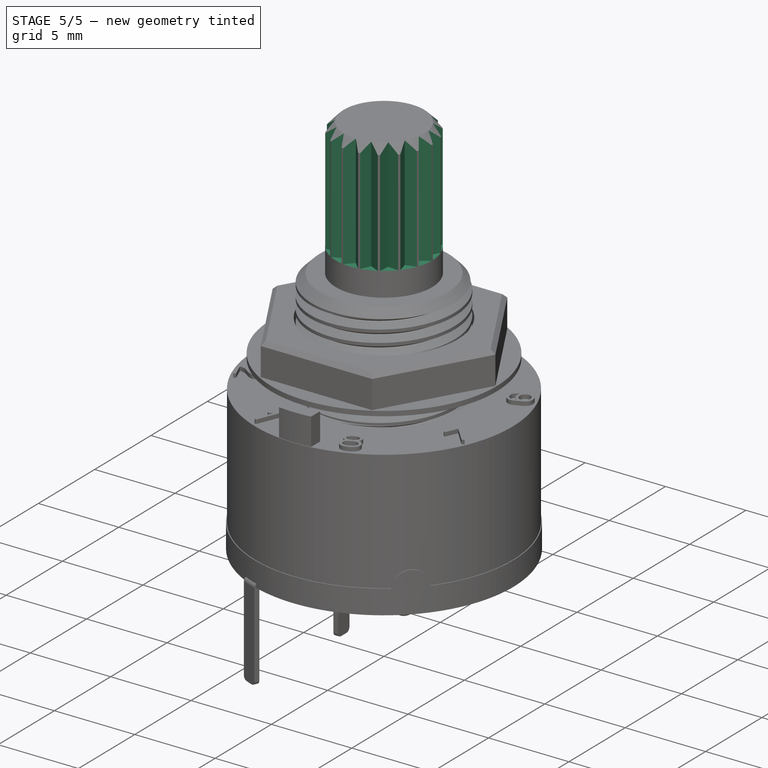
[diagram: stage 5 of 5 — iso view after this stage's code; geometry added in this stage tinted green]
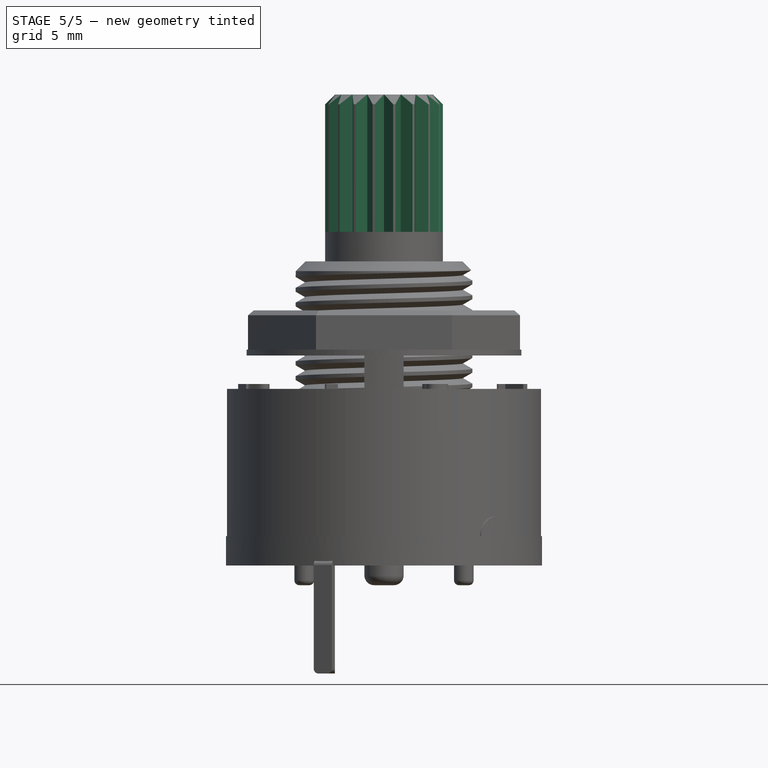
[diagram: stage 5 of 5 — front view after this stage's code; geometry added in this stage tinted green]
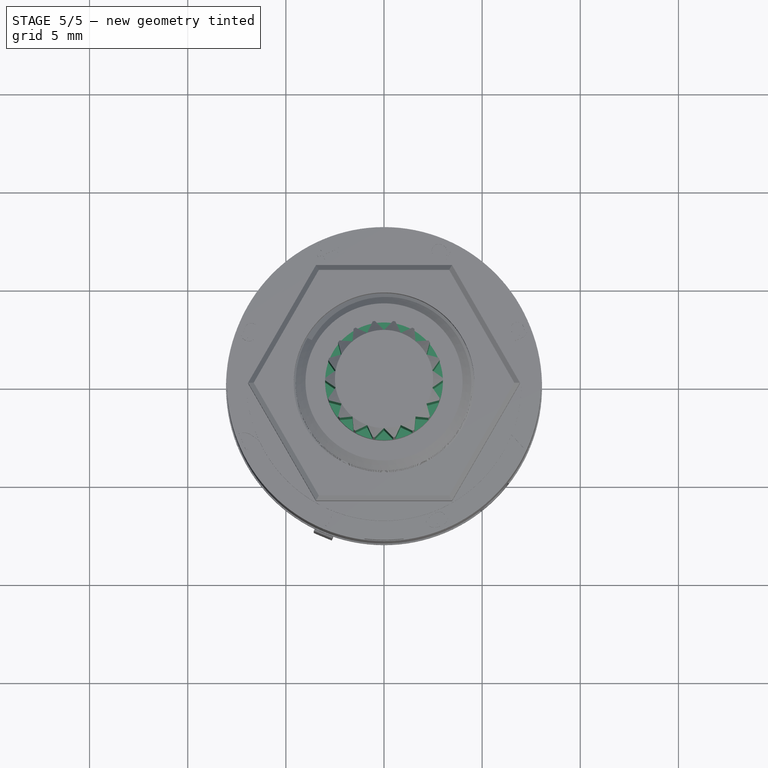
[diagram: stage 5 of 5 — top view after this stage's code; geometry added in this stage tinted green]
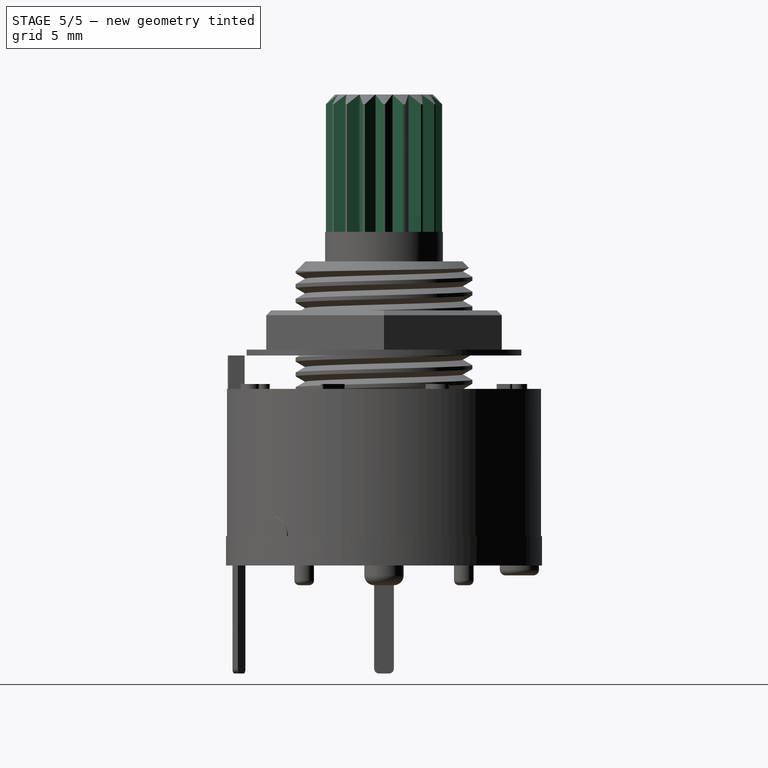
[diagram: stage 5 of 5 — right view after this stage's code; geometry added in this stage tinted green]
FEATURE [PartDesign::Body] Body001  label="Pin_Throw_A1"
  Group = -> [Sketch005,Pad004,Sketch006,AdditivePipe,Fillet]
  Origin = -> Origin001
  Tip = -> Fillet
FEATURE [PartDesign::FeatureBase] Clone
  BaseFeature = -> Body001
FEATURE [PartDesign::Body] Body002  label="Pin_Throw_A2"
  BaseFeature = -> Body001
  Group = -> [Clone]
  Origin = -> Origin002
  Placement = pos=(0,0,0) rot=(0,0,-1;0.785398rad)
  Tip = -> Clone
FEATURE [PartDesign::FeatureBase] Clone001
  BaseFeature = -> Body001
FEATURE [PartDesign::Body] Body003  label="Pin_Throw_A3"
  BaseFeature = -> Body001
  Group = -> [Clone001]
  Origin = -> Origin003
  Placement = pos=(0,0,0) rot=(0,0,-1;1.5708rad)
  Tip = -> Clone001
FEATURE [PartDesign::FeatureBase] Clone002
  BaseFeature = -> Body001
FEATURE [PartDesign::Body] Body004  label="Pin_Throw_A4"
  BaseFeature = -> Body001
  Group = -> [Clone002]
  Origin = -> Origin004
  Placement = pos=(0,0,0) rot=(0,0,1;3.92699rad)
  Tip = -> Clone002
FEATURE [PartDesign::FeatureBase] Clone003
  BaseFeature = -> Body001
FEATURE [PartDesign::Body] Body005  label="Pin_Throw_B1"
  BaseFeature = -> Body001
  Group = -> [Clone003]
  Origin = -> Origin005
  Placement = pos=(0,0,0) rot=(0,0,1;3.14159rad)
  Tip = -> Clone003
FEATURE [PartDesign::FeatureBase] Clone004
  BaseFeature = -> Body001
FEATURE [PartDesign::Body] Body006  label="Pin_Throw_B2"
  BaseFeature = -> Body001
  Group = -> [Clone004]
  Origin = -> Origin006
  Placement = pos=(0,0,0) rot=(0,0,1;2.35619rad)
  Tip = -> Clone004
FEATURE [PartDesign::FeatureBase] Clone005
  BaseFeature = -> Body001
FEATURE [PartDesign::Body] Body007  label="Pin_Throw_B3"
  BaseFeature = -> Body001
  Group = -> [Clone005]
  Origin = -> Origin007
  Placement = pos=(0,0,0) rot=(0,0,1;1.5708rad)
  Tip = -> Clone005
FEATURE [PartDesign::FeatureBase] Clone006
  BaseFeature = -> Body007
FEATURE [PartDesign::Body] Body009  label="Pin_Pole_A"
  Group = -> [Sketch008,Pad006,Fillet009]
  Origin = -> Origin009
  Tip = -> Fillet009
FEATURE [PartDesign::FeatureBase] Clone007
  BaseFeature = -> Body009
FEATURE [PartDesign::Pocket] Pocket  label="Tooth"
  BaseFeature = -> SubtractivePipe
  Length = 7
  Length2 = 100
  Profile = -> Sketch010
  Type = 0
FEATURE [PartDesign::PolarPattern] PolarPattern  label="TeethPolarPattern"
  Angle = 360
  Axis = -> Sketch010 [N_Axis]
  BaseFeature = -> Pocket
  Occurrences = 18
  Originals = -> [Pocket]
FEATURE [PartDesign::Body] Body  label="MainBody"
  Group = -> [Sketch,Pad,Sketch001,Pad001,Sketch002,Pad002,Sketch003,Pad003,ShapeBinder,Sketch009,Chamfer001,SubtractivePipe,Sketch010,Pocket,PolarPattern]
  Origin = -> Origin
  Tip = -> PolarPattern
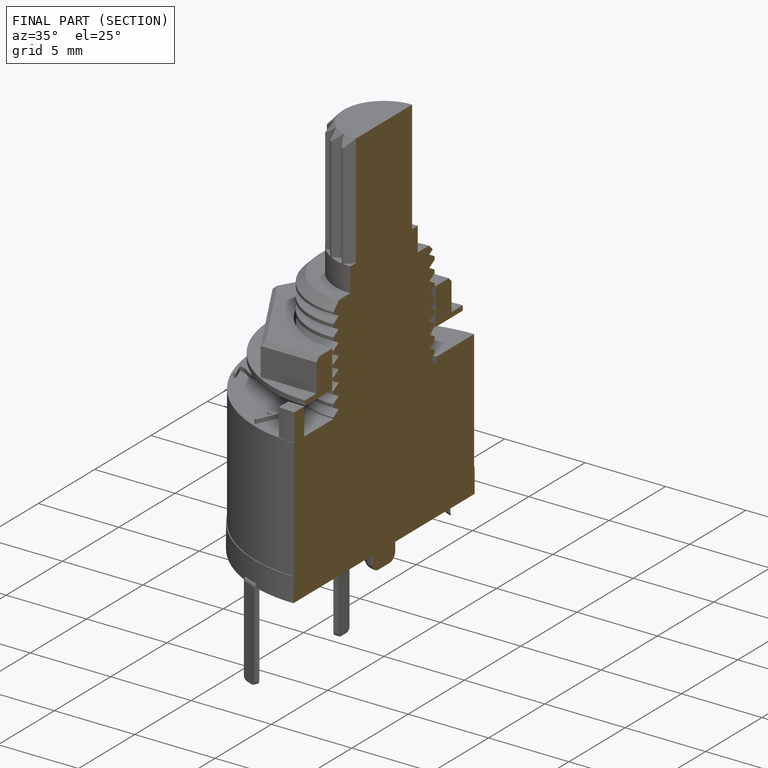
[diagram: finished part — half-section view (interior)]
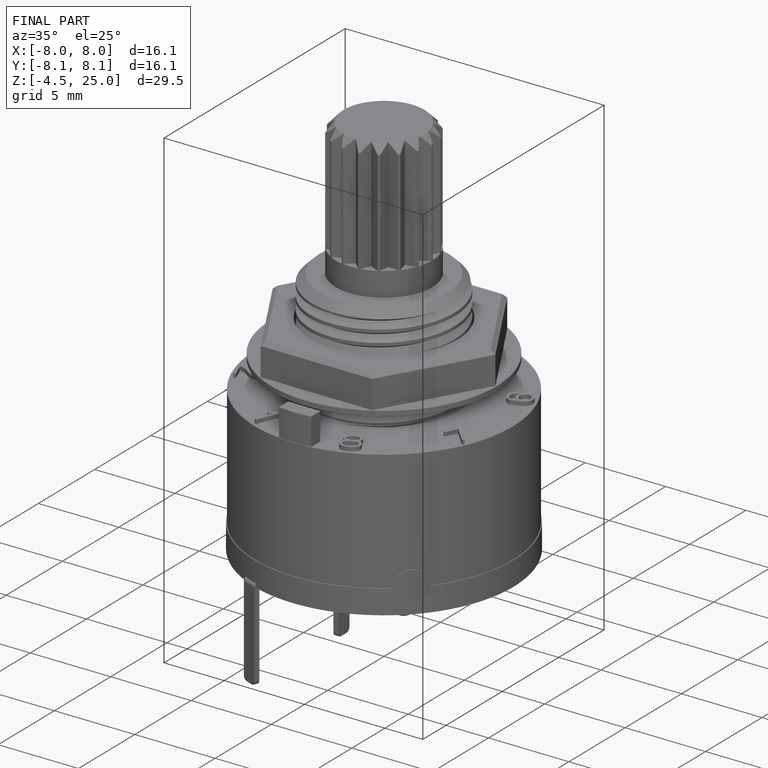
[diagram: finished part — iso view with bounding-box wireframe]
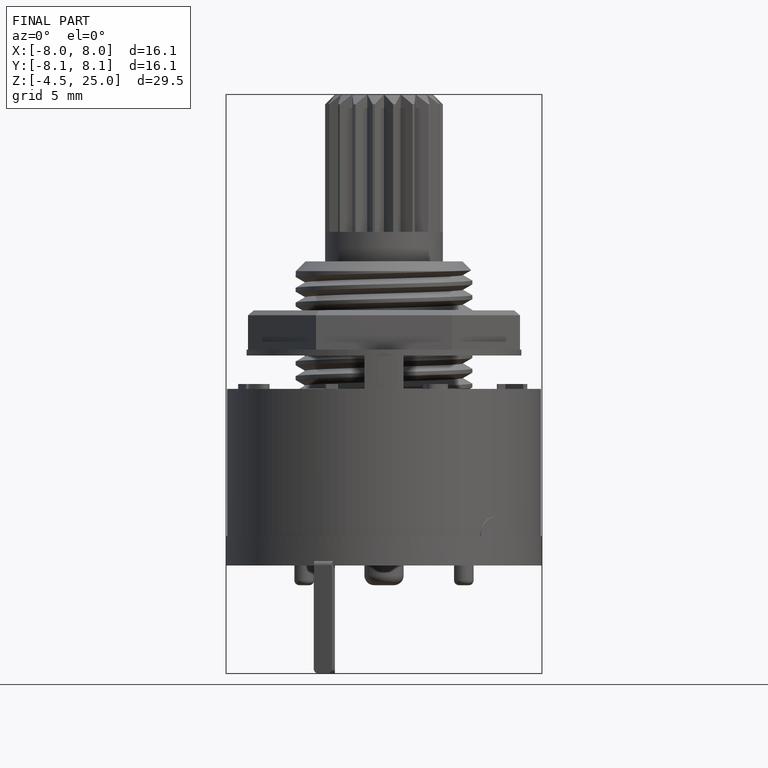
[diagram: finished part — front view with bounding-box wireframe]
